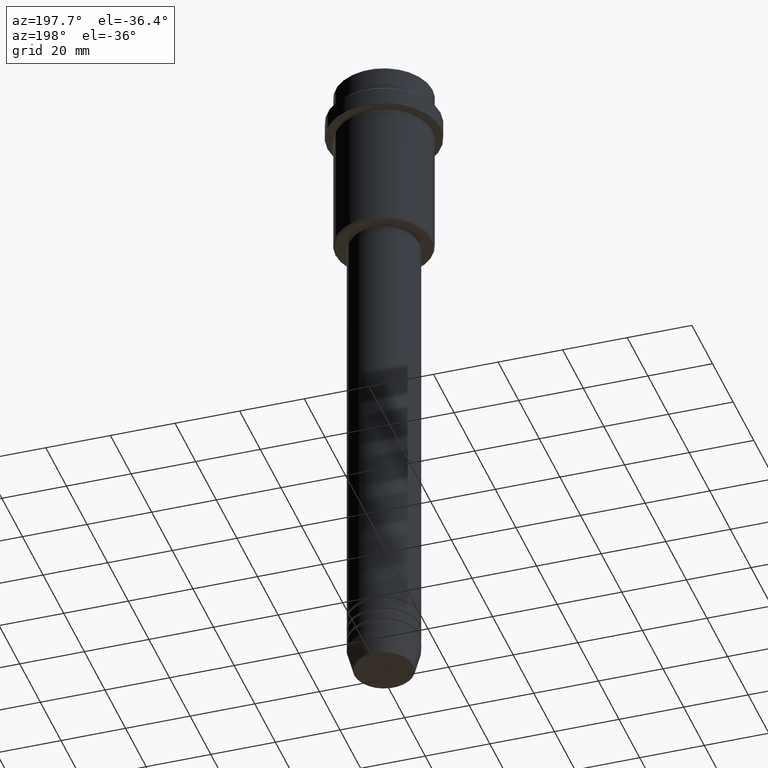
[diagram: clean part render]
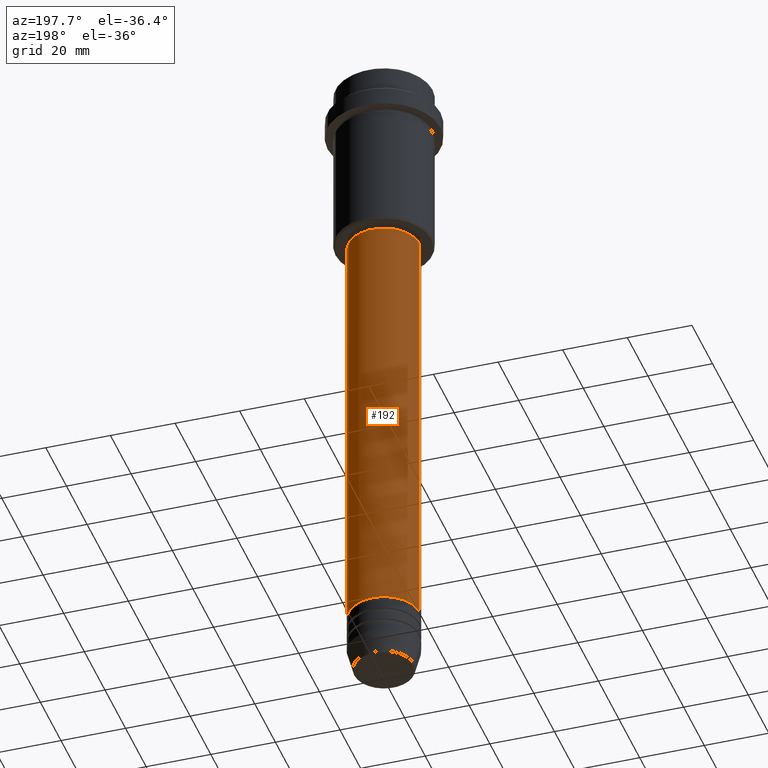
[diagram: same view with one face highlighted and labeled with its STEP entity id]
A machine part, auxiliary view. The second image highlights one B-rep face of the part: STEP entity #192.
In plain terms, the highlighted cylindrical surface (partial cylindrical patch) has radius 11 mm, axis along (-0, -0, 1).
Its self-contained STEP definition (entity closure, byte-faithful):
#12 = VERTEX_POINT ( 'NONE', #864 ) ;
#89 = AXIS2_PLACEMENT_3D ( 'NONE', #1407, #765, #439 ) ;
#90 = ORIENTED_EDGE ( 'NONE', *, *, #812, .F. ) ;
#105 = VERTEX_POINT ( 'NONE', #323 ) ;
#140 = EDGE_CURVE ( 'NONE', #1232, #892, #491, .T. ) ;
#192 = ADVANCED_FACE ( 'NONE', ( #1044 ), #1039, .T. ) ;
#200 = DIRECTION ( 'NONE',  ( -0.000000000000000000, -0.000000000000000000, 1.000000000000000000 ) ) ;
#293 = DIRECTION ( 'NONE',  ( -0.000000000000000000, -0.000000000000000000, 1.000000000000000000 ) ) ;
#296 = CARTESIAN_POINT ( 'NONE',  ( 11.00000000000000000, 0.000000000000000000, -190.9999999999999147 ) ) ;
#323 = CARTESIAN_POINT ( 'NONE',  ( -11.00000000000000000, 1.347111479062088405E-15, -190.9999999999999147 ) ) ;
#380 = EDGE_LOOP ( 'NONE', ( #906, #1223, #90, #608 ) ) ;
#439 = DIRECTION ( 'NONE',  ( 1.000000000000000000, 0.000000000000000000, 0.000000000000000000 ) ) ;
#491 = LINE ( 'NONE', #1360, #1393 ) ;
#514 = CIRCLE ( 'NONE', #777, 10.99999999999999822 ) ;
#559 = CARTESIAN_POINT ( 'NONE',  ( -11.00000000000000000, 1.347111479062088405E-15, 0.000000000000000000 ) ) ;
#608 = ORIENTED_EDGE ( 'NONE', *, *, #140, .F. ) ;
#619 = LINE ( 'NONE', #559, #734 ) ;
#701 = DIRECTION ( 'NONE',  ( 1.000000000000000000, 0.000000000000000000, 0.000000000000000000 ) ) ;
#734 = VECTOR ( 'NONE', #1405, 1000.000000000000000 ) ;
#765 = DIRECTION ( 'NONE',  ( -0.000000000000000000, -0.000000000000000000, 1.000000000000000000 ) ) ;
#777 = AXIS2_PLACEMENT_3D ( 'NONE', #963, #200, #1376 ) ;
#812 = EDGE_CURVE ( 'NONE', #892, #12, #514, .T. ) ;
#864 = CARTESIAN_POINT ( 'NONE',  ( -10.99999999999999822, 1.347111479062088207E-15, -56.00000000000002842 ) ) ;
#892 = VERTEX_POINT ( 'NONE', #1221 ) ;
#906 = ORIENTED_EDGE ( 'NONE', *, *, #1003, .T. ) ;
#963 = CARTESIAN_POINT ( 'NONE',  ( 0.000000000000000000, 0.000000000000000000, -56.00000000000002842 ) ) ;
#1003 = EDGE_CURVE ( 'NONE', #1232, #105, #1087, .T. ) ;
#1034 = DIRECTION ( 'NONE',  ( -0.000000000000000000, -0.000000000000000000, 1.000000000000000000 ) ) ;
#1039 = CYLINDRICAL_SURFACE ( 'NONE', #1417, 11.00000000000000000 ) ;
#1044 = FACE_OUTER_BOUND ( 'NONE', #380, .T. ) ;
#1087 = CIRCLE ( 'NONE', #89, 11.00000000000000000 ) ;
#1221 = CARTESIAN_POINT ( 'NONE',  ( 10.99999999999999822, 0.000000000000000000, -56.00000000000002842 ) ) ;
#1223 = ORIENTED_EDGE ( 'NONE', *, *, #1290, .T. ) ;
#1232 = VERTEX_POINT ( 'NONE', #296 ) ;
#1263 = CARTESIAN_POINT ( 'NONE',  ( 0.000000000000000000, 0.000000000000000000, 0.000000000000000000 ) ) ;
#1290 = EDGE_CURVE ( 'NONE', #105, #12, #619, .T. ) ;
#1360 = CARTESIAN_POINT ( 'NONE',  ( 11.00000000000000000, 0.000000000000000000, 0.000000000000000000 ) ) ;
#1376 = DIRECTION ( 'NONE',  ( 1.000000000000000000, 0.000000000000000000, 0.000000000000000000 ) ) ;
#1393 = VECTOR ( 'NONE', #1034, 1000.000000000000000 ) ;
#1405 = DIRECTION ( 'NONE',  ( -0.000000000000000000, -0.000000000000000000, 1.000000000000000000 ) ) ;
#1407 = CARTESIAN_POINT ( 'NONE',  ( 0.000000000000000000, 0.000000000000000000, -190.9999999999999147 ) ) ;
#1417 = AXIS2_PLACEMENT_3D ( 'NONE', #1263, #293, #701 ) ;